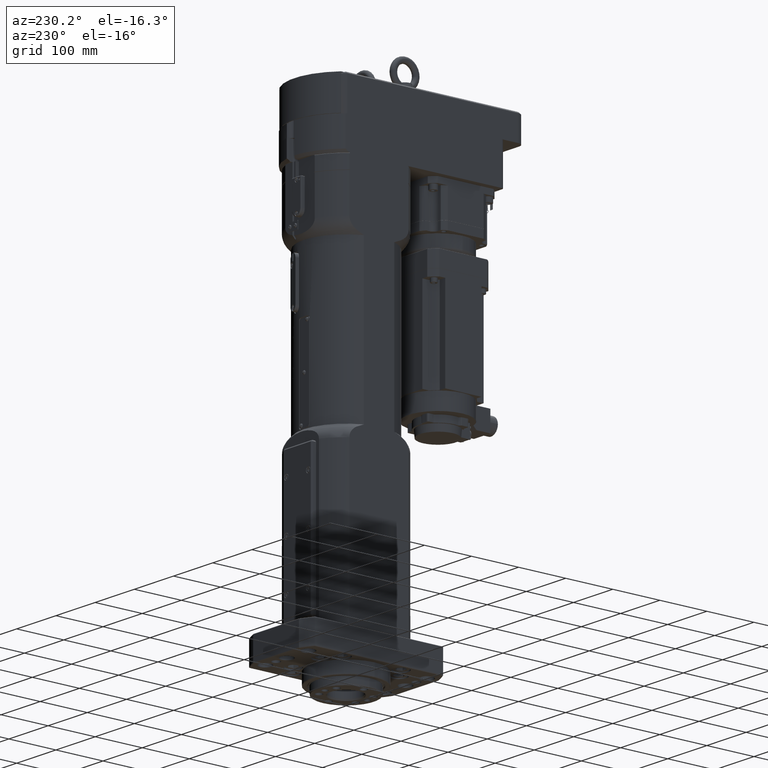
[diagram: clean part render]
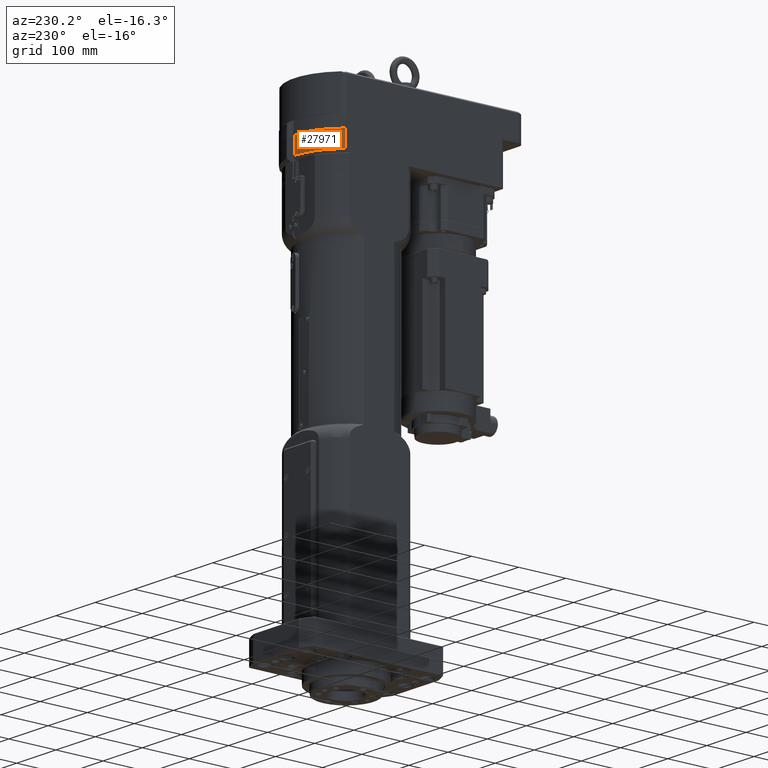
[diagram: same view with one face highlighted and labeled with its STEP entity id]
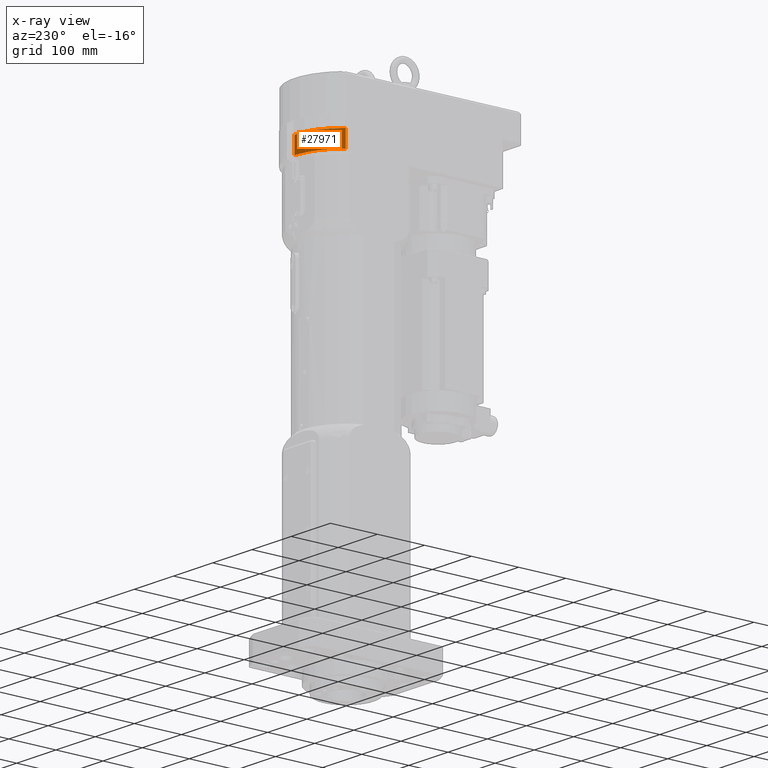
[diagram: x-ray of the same camera — body ghosted, the highlighted face saturated]
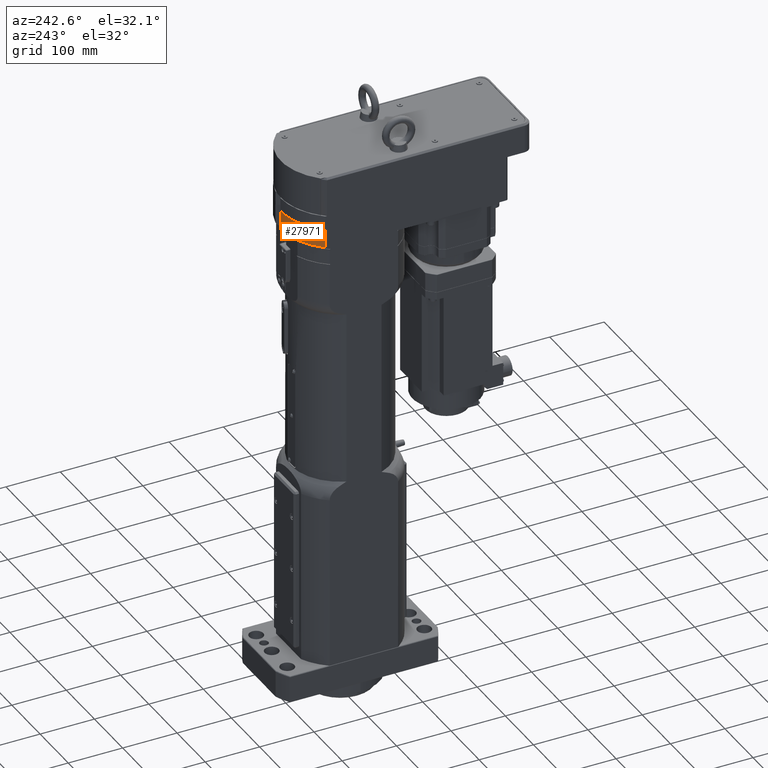
[diagram: same view with one face highlighted and labeled with its STEP entity id]
A machine part, auxiliary view. The second image highlights one B-rep face of the part: STEP entity #27971.
The next image is the same camera in x-ray: the body ghosted, the highlighted face saturated — about 0% of this face is hidden behind the body in this view.
A second angle (auxiliary view) of the same face is appended — the face is thin or edge-on in the first view.
In plain terms, the highlighted cylindrical surface (partial cylindrical patch) has radius 110 mm, axis along (0, 0, 1).
Its self-contained STEP definition (entity closure, byte-faithful):
#2226=LINE('',#46743,#3845);
#2232=LINE('',#46766,#3851);
#3845=VECTOR('',#36259,10.);
#3851=VECTOR('',#36279,10.);
#5189=CYLINDRICAL_SURFACE('',#30590,110.);
#6312=FACE_OUTER_BOUND('',#8221,.T.);
#8221=EDGE_LOOP('',(#21137,#21138,#21139,#21140));
#9564=CIRCLE('',#29477,110.);
#10042=CIRCLE('',#30581,110.);
#11222=VERTEX_POINT('',#42122);
#11248=VERTEX_POINT('',#42213);
#12183=VERTEX_POINT('',#46728);
#12184=VERTEX_POINT('',#46732);
#14006=EDGE_CURVE('',#11248,#11222,#9564,.T.);
#15439=EDGE_CURVE('',#12183,#12184,#10042,.T.);
#15444=EDGE_CURVE('',#12184,#11248,#2226,.T.);
#15454=EDGE_CURVE('',#12183,#11222,#2232,.T.);
#21137=ORIENTED_EDGE('',*,*,#15439,.F.);
#21138=ORIENTED_EDGE('',*,*,#15454,.T.);
#21139=ORIENTED_EDGE('',*,*,#14006,.F.);
#21140=ORIENTED_EDGE('',*,*,#15444,.F.);
#27971=ADVANCED_FACE('',(#6312),#5189,.T.);
#29477=AXIS2_PLACEMENT_3D('',#42220,#33492,#33493);
#30581=AXIS2_PLACEMENT_3D('',#46733,#36250,#36251);
#30590=AXIS2_PLACEMENT_3D('',#46765,#36277,#36278);
#33492=DIRECTION('center_axis',(1.66533453693774E-16,3.20474742746037E-31,
1.));
#33493=DIRECTION('ref_axis',(-0.763636363636364,-0.645646578347807,1.27171001002518E-16));
#36250=DIRECTION('center_axis',(-1.66533453693774E-16,-3.20474742746037E-31,
-1.));
#36251=DIRECTION('ref_axis',(0.763636363636364,0.645646578347807,-1.27171001002518E-16));
#36259=DIRECTION('',(1.66533453693774E-16,3.20474742746037E-31,1.));
#36277=DIRECTION('center_axis',(1.66533453693774E-16,3.20474742746037E-31,
1.));
#36278=DIRECTION('ref_axis',(-0.763636363636364,-0.645646578347807,1.27171001002518E-16));
#36279=DIRECTION('',(1.66533453693774E-16,3.20474742746037E-31,1.));
#42122=CARTESIAN_POINT('',(-84.0000000000003,71.0211236182588,892.999999999958));
#42213=CARTESIAN_POINT('',(0.000279042373067671,109.999999999646,892.999999999958));
#42220=CARTESIAN_POINT('Origin',(-2.55957699441189E-13,8.01186856865092E-30,
892.999999999958));
#46728=CARTESIAN_POINT('',(-84.0000000000003,71.0211236182588,857.999999999958));
#46732=CARTESIAN_POINT('',(0.000279042373061842,109.999999999646,857.999999999958));
#46733=CARTESIAN_POINT('Origin',(-2.61786370320471E-13,-3.20474742746037E-30,
857.999999999958));
#46743=CARTESIAN_POINT('',(0.00027904237306101,109.999999999646,852.999999999958));
#46765=CARTESIAN_POINT('Origin',(-2.6261903758894E-13,-4.80712114119055E-30,
852.999999999958));
#46766=CARTESIAN_POINT('',(-84.0000000000003,71.0211236182588,852.999999999958));